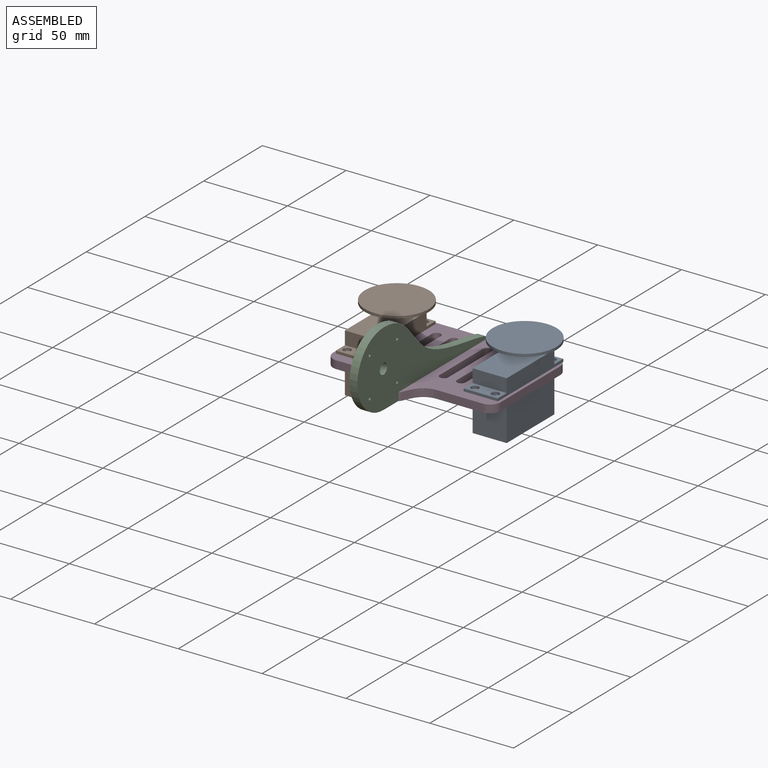
[diagram: assembled view]
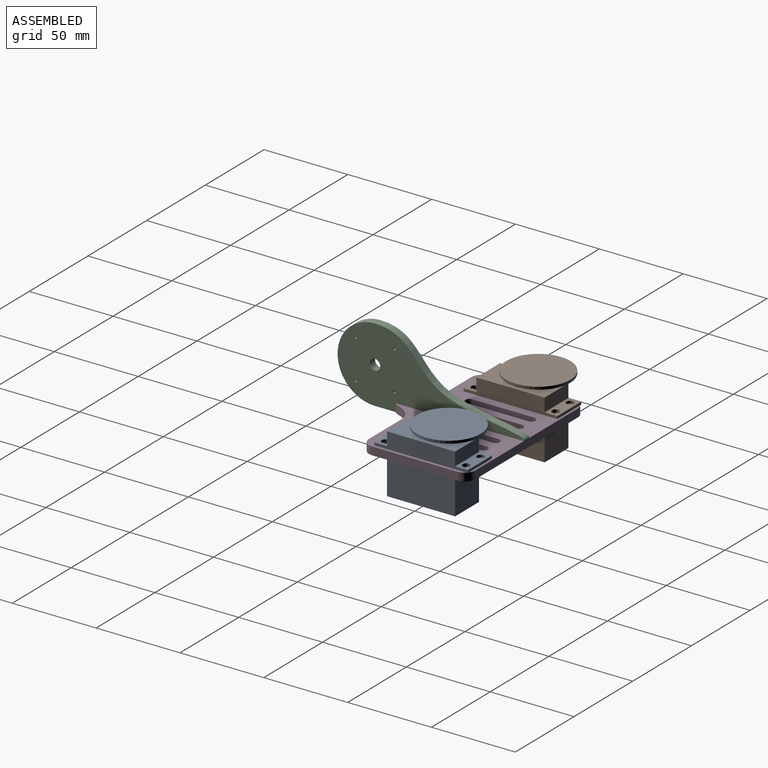
[diagram: assembled view, second angle]
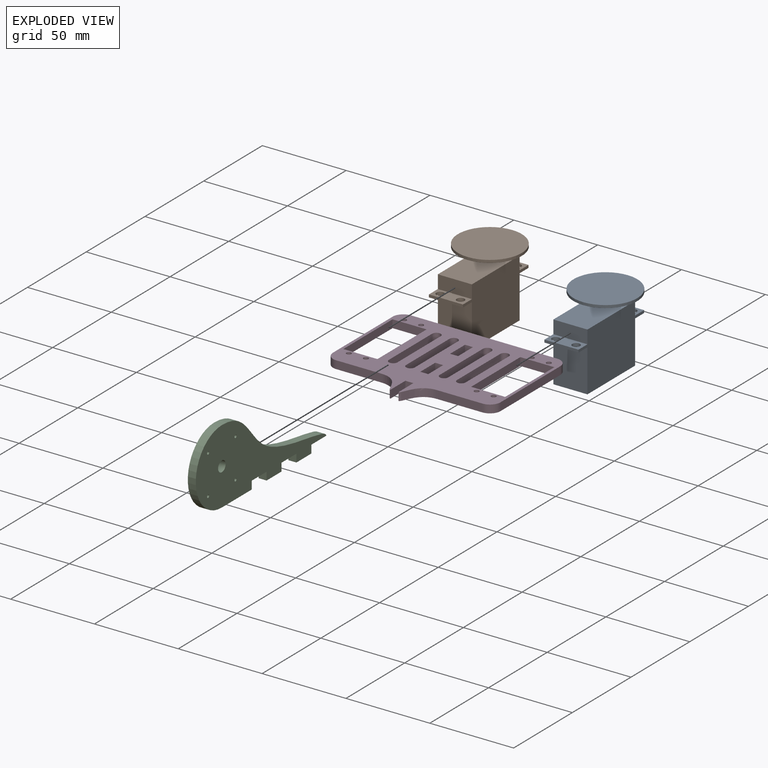
[diagram: exploded view]
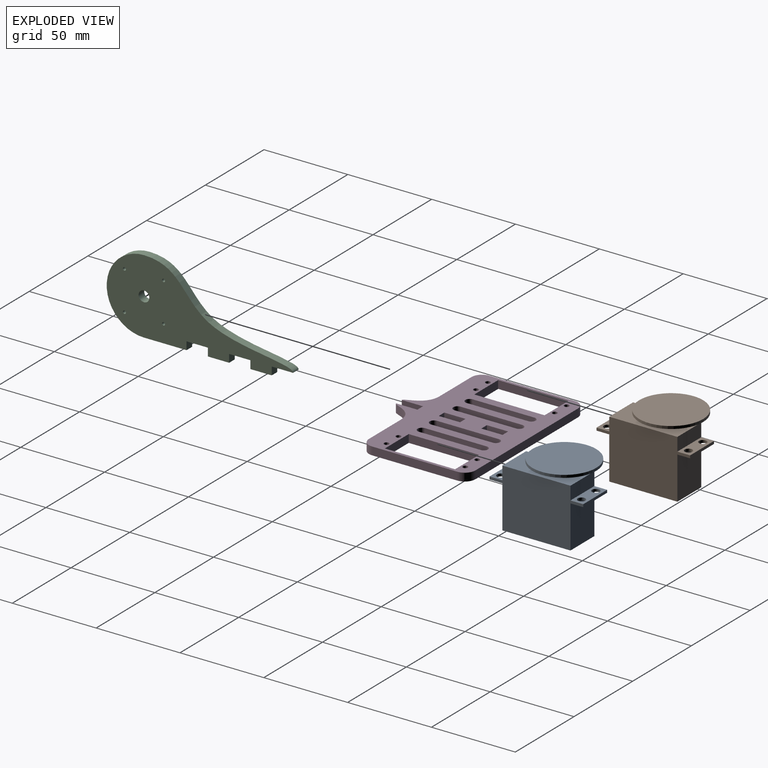
[diagram: exploded view, second angle]
ASSEMBLY  parts=4 mates=3
PART A: 22 faces, bbox 56.5x38.1x42.9 mm
  f0: plane 20.32x7.62mm, normal (0,0,1), area 122mm2, adj f10,f11,f14,f16,f20,f21
  f1: plane 20.32x7.62mm, normal (0,0,1), area 122mm2, adj f10,f11,f13,f17,f18,f19
  f2: plane 40.64x20.32mm, normal (0,0,1), area 817.9mm2, adj f4,f10,f11,f13,f14
  f3: plane 40.64x20.32mm, normal (0,0,-1), area 825.8mm2, adj f10,f11,f12,f15
  f4: cylinder r=1.59mm len=6.35mm, axis (0,0,1), area 63.3mm2, adj f2,f7
  f5: cylinder r=19.05mm len=38.1mm, axis (0,0,1), area 190mm2, adj f6,f7
  f6: plane 38.1x38.1mm, normal (0,0,1), area 1140.1mm2, adj f5
  f7: plane 38.1x38.1mm, normal (0,0,-1), area 1132.2mm2, adj f4,f5
  f8: plane 20.32x7.62mm, normal (0,0,-1), area 122mm2, adj f10,f11,f15,f16,f20,f21
  f9: plane 20.32x7.62mm, normal (0,0,-1), area 122mm2, adj f10,f11,f12,f17,f18,f19
  f10: plane 55.88x34.93mm, normal (0,1,0), area 1443.5mm2, adj f0,f1,f2,f3,f8,f9,f12,f13
  f11: plane 55.88x34.93mm, normal (0,-1,0), area 1443.5mm2, adj f0,f1,f2,f3,f8,f9,f12,f13
  f12: plane 25.4x20.32mm, normal (1,0,0), area 516.1mm2, adj f3,f9,f10,f11
  f13: plane 20.32x7.94mm, normal (1,0,0), area 161.3mm2, adj f1,f2,f10,f11
  f14: plane 20.32x7.94mm, normal (-1,0,0), area 161.3mm2, adj f0,f2,f10,f11
  f15: plane 25.4x20.32mm, normal (-1,0,0), area 516.1mm2, adj f3,f8,f10,f11
  f16: plane 20.32x1.59mm, normal (-1,0,0), area 32.3mm2, adj f0,f8,f10,f11
  f17: plane 20.32x1.59mm, normal (1,0,0), area 32.3mm2, adj f1,f9,f10,f11
  f18: cylinder r=2.29mm len=4.57mm, axis (0,0,1), area 22.8mm2, adj f1,f9
  f19: cylinder r=2.29mm len=4.57mm, axis (0,0,1), area 22.8mm2, adj f1,f9
  f20: cylinder r=2.29mm len=4.57mm, axis (0,0,1), area 22.8mm2, adj f0,f8
  f21: cylinder r=2.29mm len=4.57mm, axis (0,0,1), area 22.8mm2, adj f0,f8
PART B: same geometry as A
PART C: 20 faces, bbox 111.1x44.5x4.8 mm
  f0: plane 25.4x4.76mm, normal (0,-1,0), area 121mm2, adj f1,f16,f18,f19
  f1: cylinder r=22.23mm len=44.45mm, axis (0,0,-1), area 332.5mm2, adj f0,f2,f18,f19
  f2: extruded ~88.9x39.69mm, area 481.3mm2, adj f1,f3,f18,f19
  f3: plane 12.7x4.76mm, normal (0,-1,0), area 60.5mm2, adj f2,f4,f18,f19
  f4: plane 4.76x4.76mm, normal (-1,0,0), area 22.7mm2, adj f3,f5,f18,f19
  f5: plane 12.7x4.76mm, normal (0,-1,0), area 60.5mm2, adj f4,f6,f18,f19
  f6: plane 4.76x4.76mm, normal (1,0,0), area 22.7mm2, adj f5,f7,f18,f19
  f7: plane 12.7x4.76mm, normal (0,-1,0), area 60.5mm2, adj f6,f8,f18,f19
  f8: plane 4.76x4.76mm, normal (-1,0,0), area 22.7mm2, adj f7,f9,f18,f19
  f9: plane 12.7x4.76mm, normal (0,-1,0), area 60.5mm2, adj f8,f10,f18,f19
  f10: plane 4.76x4.76mm, normal (1,0,0), area 22.7mm2, adj f9,f11,f18,f19
  f11: plane 12.7x4.76mm, normal (0,-1,0), area 60.5mm2, adj f10,f16,f18,f19
  f12: cylinder r=0.89mm len=4.76mm, axis (0,0,-1), area 26.6mm2, adj f18,f19
  f13: cylinder r=0.89mm len=4.76mm, axis (0,0,-1), area 26.6mm2, adj f18,f19
  f14: cylinder r=0.89mm len=4.76mm, axis (0,0,-1), area 26.6mm2, adj f18,f19
  f15: cylinder r=3.17mm len=6.35mm, axis (0,0,-1), area 95mm2, adj f18,f19
  f16: plane 4.76x4.76mm, normal (-1,0,0), area 22.7mm2, adj f0,f11,f18,f19
  f17: cylinder r=0.89mm len=4.76mm, axis (0,0,-1), area 26.6mm2, adj f18,f19
  f18: plane 111.13x44.45mm, normal (0,0,1), area 2457.7mm2, adj f0,f1,f2,f3,f4,f5,f6,f7
  f19: plane 111.13x44.45mm, normal (0,0,-1), area 2457.7mm2, adj f0,f1,f2,f3,f4,f5,f6,f7
PART D: 56 faces, bbox 100x76.2x4.8 mm
  f0: plane 87.26x4.76mm, normal (0,1,0), area 415.6mm2, adj f2,f3,f48,f49
  f1: plane 26.96x4.76mm, normal (0,-1,0), area 128.4mm2, adj f2,f3,f21,f51
  f2: plane 99.96x76.2mm, normal (0,0,1), area 3714.4mm2, adj f0,f1,f4,f5,f6,f7,f8,f9
  f3: plane 99.96x76.2mm, normal (0,0,-1), area 3714.4mm2, adj f0,f1,f4,f5,f6,f7,f8,f9
  f4: plane 41.91x4.76mm, normal (1,0,0), area 199.6mm2, adj f2,f3,f5,f33
  f5: plane 20.32x4.76mm, normal (0,-1,0), area 96.8mm2, adj f2,f3,f4,f6
  f6: plane 41.91x4.76mm, normal (-1,0,0), area 199.6mm2, adj f2,f3,f5,f33
  f7: plane 4.76x4.76mm, normal (0,-1,0), area 22.7mm2, adj f2,f3,f8,f22
  f8: plane 12.7x4.76mm, normal (-1,0,0), area 60.5mm2, adj f2,f3,f7,f9
  f9: plane 4.76x4.76mm, normal (0,1,0), area 22.7mm2, adj f2,f3,f8,f22
  f10: plane 4.76x4.76mm, normal (0,-1,0), area 22.7mm2, adj f2,f3,f11,f31
  f11: plane 12.7x4.76mm, normal (-1,0,0), area 60.5mm2, adj f2,f3,f10,f12
  f12: plane 4.76x4.76mm, normal (0,1,0), area 22.7mm2, adj f2,f3,f11,f31
  f13: plane 41.91x4.76mm, normal (1,0,0), area 199.6mm2, adj f2,f3,f14,f32
  f14: plane 20.32x4.76mm, normal (0,-1,0), area 96.8mm2, adj f2,f3,f13,f15
  f15: plane 41.91x4.76mm, normal (-1,0,0), area 199.6mm2, adj f2,f3,f14,f32
  f16: plane 26.96x4.76mm, normal (0,-1,0), area 128.4mm2, adj f2,f3,f17,f46
  f17: extruded ~14.29x12.7mm, area 98.1mm2, adj f2,f3,f16,f18
  f18: plane 12.7x4.76mm, normal (1,0,0), area 60.5mm2, adj f2,f3,f17,f19
  f19: plane 4.76x4.76mm, normal (0,-1,0), area 22.7mm2, adj f2,f3,f18,f20
  f20: plane 12.7x4.76mm, normal (-1,0,0), area 60.5mm2, adj f2,f3,f19,f21
  f21: extruded ~14.29x12.7mm, area 98.1mm2, adj f1,f2,f3,f20
  f22: plane 12.7x4.76mm, normal (1,0,0), area 60.5mm2, adj f2,f3,f7,f9
  f23: cylinder r=1.46mm len=4.76mm, axis (0,0,-1), area 43.7mm2, adj f2,f3
  f24: cylinder r=1.46mm len=4.76mm, axis (0,0,-1), area 43.7mm2, adj f2,f3
  f25: cylinder r=1.46mm len=4.76mm, axis (0,0,-1), area 43.7mm2, adj f2,f3
  f26: cylinder r=1.46mm len=4.76mm, axis (0,0,-1), area 43.7mm2, adj f2,f3
  f27: cylinder r=1.46mm len=4.76mm, axis (0,0,-1), area 43.7mm2, adj f2,f3
  f28: cylinder r=1.46mm len=4.76mm, axis (0,0,-1), area 43.7mm2, adj f2,f3
  f29: cylinder r=1.46mm len=4.76mm, axis (0,0,-1), area 43.7mm2, adj f2,f3
  f30: cylinder r=1.46mm len=4.76mm, axis (0,0,-1), area 43.7mm2, adj f2,f3
  f31: plane 12.7x4.76mm, normal (1,0,0), area 60.5mm2, adj f2,f3,f10,f12
  f32: plane 20.32x4.76mm, normal (0,1,0), area 96.8mm2, adj f2,f3,f13,f15
  f33: plane 20.32x4.76mm, normal (0,1,0), area 96.8mm2, adj f2,f3,f4,f6
  f34: cylinder r=2.54mm len=5.08mm, axis (0,0,1), area 38mm2, adj f2,f3,f35,f37
  f35: plane 36.83x4.76mm, normal (-1,0,0), area 175.4mm2, adj f2,f3,f34,f36
  f36: cylinder r=2.54mm len=5.08mm, axis (0,0,1), area 38mm2, adj f2,f3,f35,f37
  f37: plane 36.83x4.76mm, normal (1,0,0), area 175.4mm2, adj f2,f3,f34,f36
  f38: cylinder r=2.54mm len=5.08mm, axis (0,0,1), area 38mm2, adj f2,f3,f39,f41
  f39: plane 36.83x4.76mm, normal (1,0,0), area 175.4mm2, adj f2,f3,f38,f40
  f40: cylinder r=2.54mm len=5.08mm, axis (0,0,1), area 38mm2, adj f2,f3,f39,f41
  f41: plane 36.83x4.76mm, normal (-1,0,0), area 175.4mm2, adj f2,f3,f38,f40
  f42: cylinder r=2.54mm len=5.08mm, axis (0,0,1), area 38mm2, adj f2,f3,f43,f45
  f43: plane 36.83x4.76mm, normal (-1,0,0), area 175.4mm2, adj f2,f3,f42,f44
  f44: cylinder r=2.54mm len=5.08mm, axis (0,0,1), area 38mm2, adj f2,f3,f43,f45
  f45: plane 36.83x4.76mm, normal (1,0,0), area 175.4mm2, adj f2,f3,f42,f44
  f46: cylinder r=6.35mm len=6.35mm, axis (0,0,1), area 47.5mm2, adj f2,f3,f16,f47
  f47: plane 50.8x4.76mm, normal (-1,0,0), area 241.9mm2, adj f2,f3,f46,f48
  f48: cylinder r=6.35mm len=6.35mm, axis (0,0,1), area 47.5mm2, adj f0,f2,f3,f47
  f49: cylinder r=6.35mm len=6.35mm, axis (0,0,1), area 47.5mm2, adj f0,f2,f3,f50
  f50: plane 50.8x4.76mm, normal (1,0,0), area 241.9mm2, adj f2,f3,f49,f51
  f51: cylinder r=6.35mm len=6.35mm, axis (0,0,1), area 47.5mm2, adj f1,f2,f3,f50
  f52: cylinder r=2.54mm len=5.08mm, axis (0,0,1), area 38mm2, adj f2,f3,f53,f55
  f53: plane 36.83x4.76mm, normal (1,0,0), area 175.4mm2, adj f2,f3,f52,f54
  f54: cylinder r=2.54mm len=5.08mm, axis (0,0,1), area 38mm2, adj f2,f3,f53,f55
  f55: plane 36.83x4.76mm, normal (-1,0,0), area 175.4mm2, adj f2,f3,f52,f54
PLACE A rot(axis=(0,0,-1),90deg) t=(47.63,29.53,4.76)mm
PLACE B rot(axis=(0,0,-1),90deg) t=(-28.58,29.53,4.76)mm
PLACE C rot(axis=(0.58,-0.58,-0.58),120deg) t=(2.38,-31.75,22.23)mm
PLACE D t=(0,29.86,0)mm
MATE fastened A.f15 <-> D.f14  axis (0,1,0) through (38.1,22.86,4.76)mm
MATE fastened B.f15 <-> D.f5  axis (0,1,0) through (-38.1,22.86,4.76)mm
MATE fastened C.f4 <-> D.f10  axis (0,1,0) through (0,19.05,4.76)mm
